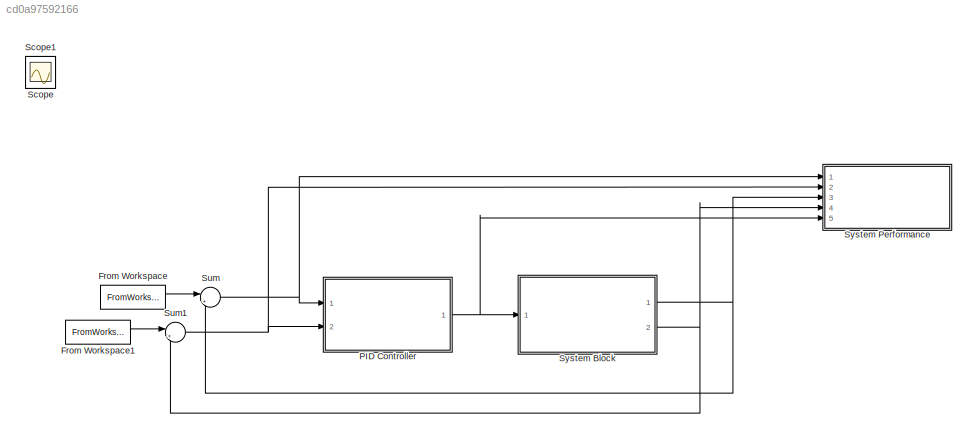
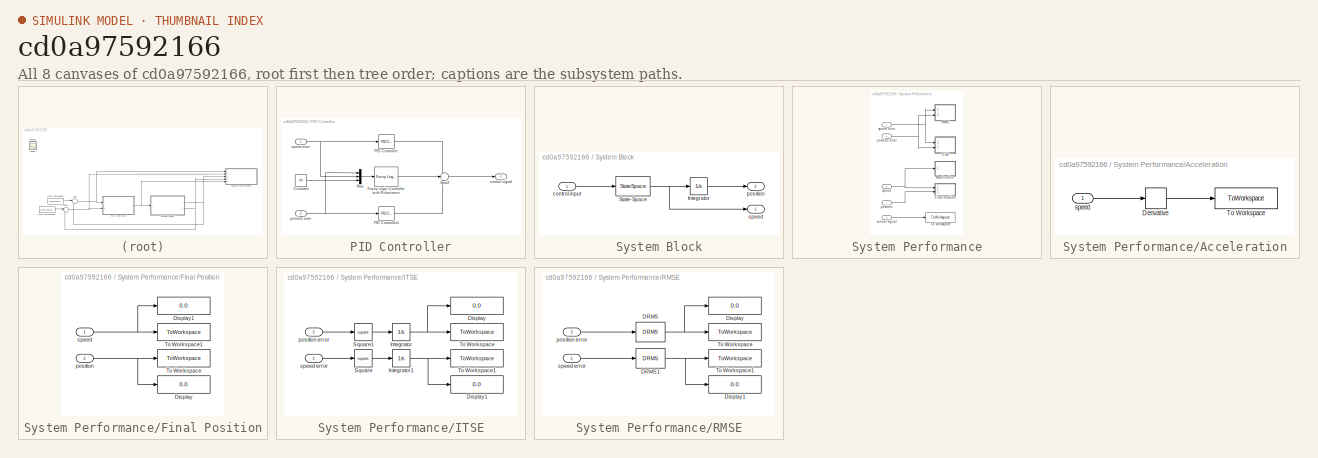
[diagram: thumbnail index - all 8 canvases of the model, root first then tree order]
MODEL slx_cd0a97592166
KIND model
CONFIG AbsTol = auto
CONFIG EnableMultiTasking = off
CONFIG FixedStep = auto
CONFIG MaxStep = auto
CONFIG MinStep = auto
CONFIG RelTol = 1e-3
CONFIG SampleTimeConstraint = Unconstrained
CONFIG Solver = VariableStepAuto
CONFIG SolverName = VariableStepAuto
CONFIG StartTime = 0.0
CONFIG StopTime = 80
BLOCK [FromWorkspace] From Workspace
  VariableName = spd_ref
BLOCK [FromWorkspace] From Workspace1
  VariableName = dis_ref
BLOCK [SubSystem] PID Controller
  Ports = [2, 1]
  RequestExecContextInheritance = off
BLOCK [Constant] PID Controller/Constant
  Value = 44
BLOCK [Reference] PID Controller/Fuzzy Logic Controller with Ruleviewer  REF=fuzblock/Fuzzy Logic   (lib defined in mdl_858b3b3e7478)
Controller 
with Ruleviewer
  Ports = [1, 1]
  SourceBlock = fuzblock/Fuzzy Logic \nController \nwith Ruleviewer
  SourceProductBaseCode = FL
  SourceType = Fuzzy Inference System
BLOCK [Mux] PID Controller/Mux
  DisplayOption = bar
  Inputs = 3
  Ports = [3, 1]
BLOCK [Reference] PID Controller/PID Controller  REF=simulink/Continuous/PID Controller
  Ports = [1, 1]
  SourceBlock = simulink/Continuous/PID Controller
  SourceProductBaseCode = SL
  SourceType = PID 1dof
BLOCK [Reference] PID Controller/PID Controller1  REF=simulink/Continuous/PID Controller
  Ports = [1, 1]
  SourceBlock = simulink/Continuous/PID Controller
  SourceProductBaseCode = SL
  SourceType = PID 1dof
BLOCK [Sum] PID Controller/Sum2
  Inputs = +++
  Ports = [3, 1]
BLOCK [Outport] PID Controller/control signal
BLOCK [Inport] PID Controller/position error
  Port = 2
BLOCK [Inport] PID Controller/speed error
BLOCK [Scope] Scope
  Floating = off
  IOType = viewer
  NumInputPorts = 1
  Ports = []
  ScopeSpecificationString = Simulink.scopes.TimeScopeBlockCfg('CurrentConfiguration', extmgr.ConfigurationSet(extmgr.Configuration('Core','General UI',true),extmgr.Configuration('Core','Source UI',true),extmgr.Configuration('Sources','WiredSimulink',true),extmgr.Configuration('Visuals','Time Domain',true,'SerializedDisplays',{struct('MinYLimReal','-0.00459','MaxYLimReal','0.00455','YLabelReal','','MinYLimMag','0.00000','MaxY...<+3434ch>
BLOCK [Scope] Scope1
  Floating = off
  IOType = viewer
  NumInputPorts = 1
  Ports = []
  ScopeSpecificationString = Simulink.scopes.TimeScopeBlockCfg('CurrentConfiguration', extmgr.ConfigurationSet(extmgr.Configuration('Core','General UI',true),extmgr.Configuration('Core','Source UI',true),extmgr.Configuration('Sources','WiredSimulink',true,'DataLoggingVariableName','ScopeData1'),extmgr.Configuration('Visuals','Time Domain',true,'SerializedDisplays',{struct('MinYLimReal','-84.51636','MaxYLimReal','116.1426','YL...<+2810ch>
BLOCK [Sum] Sum
  Inputs = |+-
  Ports = [2, 1]
BLOCK [Sum] Sum1
  Inputs = |+-
  Ports = [2, 1]
BLOCK [SubSystem] System Block
  Ports = [1, 2]
  RequestExecContextInheritance = off
BLOCK [Integrator] System Block/Integrator
  Ports = [1, 1]
BLOCK [StateSpace] System Block/State-Space
  A = A
  B = B
  C = C
  D = D
  InitialCondition = 0
  Ports = [1, 1]
BLOCK [Inport] System Block/control input
BLOCK [Outport] System Block/position
  Port = 2
BLOCK [Outport] System Block/speed
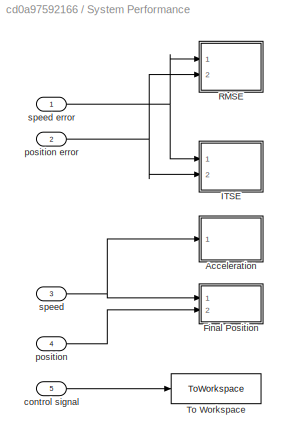
BLOCK [SubSystem] System Performance
  Ports = [5]
  RequestExecContextInheritance = off
BLOCK [SubSystem] System Performance/Acceleration
  Ports = [1]
  RequestExecContextInheritance = off
BLOCK [Derivative] System Performance/Acceleration/Derivative
BLOCK [ToWorkspace] System Performance/Acceleration/To Workspace
  FixptAsFi = on
  MaxDataPoints = inf
  Ports = [1]
  SampleTime = Ts
  SaveFormat = Timeseries
  VariableName = acceleration
BLOCK [Inport] System Performance/Acceleration/speed
BLOCK [SubSystem] System Performance/Final Position
  Ports = [2]
  RequestExecContextInheritance = off
BLOCK [Display] System Performance/Final Position/Display
  Decimation = 1
  Ports = [1]
BLOCK [Display] System Performance/Final Position/Display1
  Decimation = 1
  Ports = [1]
BLOCK [ToWorkspace] System Performance/Final Position/To Workspace
  FixptAsFi = on
  MaxDataPoints = inf
  Ports = [1]
  SampleTime = Ts
  SaveFormat = Timeseries
  VariableName = position
BLOCK [ToWorkspace] System Performance/Final Position/To Workspace1
  FixptAsFi = on
  MaxDataPoints = inf
  Ports = [1]
  SampleTime = Ts
  SaveFormat = Timeseries
  VariableName = speed
BLOCK [Inport] System Performance/Final Position/position
  Port = 2
BLOCK [Inport] System Performance/Final Position/speed
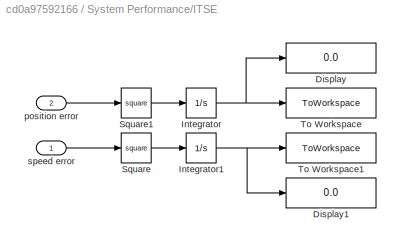
BLOCK [SubSystem] System Performance/ITSE
  Ports = [2]
  RequestExecContextInheritance = off
BLOCK [Display] System Performance/ITSE/Display
  Decimation = 1
  Ports = [1]
BLOCK [Display] System Performance/ITSE/Display1
  Decimation = 1
  Ports = [1]
BLOCK [Integrator] System Performance/ITSE/Integrator
  Ports = [1, 1]
BLOCK [Integrator] System Performance/ITSE/Integrator1
  Ports = [1, 1]
BLOCK [Math] System Performance/ITSE/Square
  Operator = square
  Ports = [1, 1]
BLOCK [Math] System Performance/ITSE/Square1
  Operator = square
  Ports = [1, 1]
BLOCK [ToWorkspace] System Performance/ITSE/To Workspace
  FixptAsFi = on
  MaxDataPoints = inf
  Ports = [1]
  SampleTime = Ts
  SaveFormat = Timeseries
  VariableName = pos_itse
BLOCK [ToWorkspace] System Performance/ITSE/To Workspace1
  FixptAsFi = on
  MaxDataPoints = inf
  Ports = [1]
  SampleTime = Ts
  SaveFormat = Timeseries
  VariableName = spd_itse
BLOCK [Inport] System Performance/ITSE/position error
  Port = 2
BLOCK [Inport] System Performance/ITSE/speed error
BLOCK [SubSystem] System Performance/RMSE
  Ports = [2]
  RequestExecContextInheritance = off
BLOCK [Reference] System Performance/RMSE/DRMS  REF=sdolib/RMS Blocks/DRMS
  Ports = [1, 1]
  SourceBlock = sdolib/RMS Blocks/DRMS
  SourceProductBaseCode = SO
  SourceType = Discrete RMS Value Block
BLOCK [Reference] System Performance/RMSE/DRMS1  REF=sdolib/RMS Blocks/DRMS
  Ports = [1, 1]
  SourceBlock = sdolib/RMS Blocks/DRMS
  SourceProductBaseCode = SO
  SourceType = Discrete RMS Value Block
BLOCK [Display] System Performance/RMSE/Display
  Decimation = 1
  Ports = [1]
BLOCK [Display] System Performance/RMSE/Display1
  Decimation = 1
  Ports = [1]
BLOCK [ToWorkspace] System Performance/RMSE/To Workspace
  FixptAsFi = on
  MaxDataPoints = inf
  Ports = [1]
  SampleTime = Ts
  SaveFormat = Timeseries
  VariableName = pos_rmse
BLOCK [ToWorkspace] System Performance/RMSE/To Workspace1
  FixptAsFi = on
  MaxDataPoints = inf
  Ports = [1]
  SampleTime = Ts
  SaveFormat = Timeseries
  VariableName = spd_rmse
BLOCK [Inport] System Performance/RMSE/position error
  Port = 2
BLOCK [Inport] System Performance/RMSE/speed error
BLOCK [ToWorkspace] System Performance/To Workspace
  FixptAsFi = on
  MaxDataPoints = inf
  Ports = [1]
  SampleTime = Ts
  SaveFormat = Timeseries
  VariableName = controlinput
BLOCK [Inport] System Performance/control signal
  Port = 5
BLOCK [Inport] System Performance/position
  Port = 4
BLOCK [Inport] System Performance/position error
  Port = 2
BLOCK [Inport] System Performance/speed
  Port = 3
BLOCK [Inport] System Performance/speed error
LINE From Workspace1:1 -> Sum1:1
LINE From Workspace:1 -> Sum:1
LINE PID Controller/Constant:1 -> PID Controller/Mux:3
LINE PID Controller/Fuzzy Logic Controller with Ruleviewer:1 -> PID Controller/Sum2:2
LINE PID Controller/Mux:1 -> PID Controller/Fuzzy Logic Controller with Ruleviewer:1
LINE PID Controller/PID Controller1:1 -> PID Controller/Sum2:3
LINE PID Controller/PID Controller:1 -> PID Controller/Sum2:1
LINE PID Controller/Sum2:1 -> PID Controller/control signal:1
NET PID Controller/position error:1 -> PID Controller/Mux:1, PID Controller/PID Controller1:1
NET PID Controller/speed error:1 -> PID Controller/Mux:2, PID Controller/PID Controller:1
NET PID Controller:1 -> System Block:1, System Performance:5
NET Sum1:1 -> PID Controller:2, System Performance:2
NET Sum:1 -> PID Controller:1, System Performance:1
LINE System Block/Integrator:1 -> System Block/position:1
NET System Block/State-Space:1 -> System Block/Integrator:1, System Block/speed:1
LINE System Block/control input:1 -> System Block/State-Space:1
NET System Block:1 -> Sum:2, System Performance:3
NET System Block:2 -> Sum1:2, System Performance:4
LINE System Performance/Acceleration/Derivative:1 -> System Performance/Acceleration/To Workspace:1
LINE System Performance/Acceleration/speed:1 -> System Performance/Acceleration/Derivative:1
NET System Performance/Final Position/position:1 -> System Performance/Final Position/Display:1, System Performance/Final Position/To Workspace:1
NET System Performance/Final Position/speed:1 -> System Performance/Final Position/Display1:1, System Performance/Final Position/To Workspace1:1
NET System Performance/ITSE/Integrator1:1 -> System Performance/ITSE/Display1:1, System Performance/ITSE/To Workspace1:1
NET System Performance/ITSE/Integrator:1 -> System Performance/ITSE/Display:1, System Performance/ITSE/To Workspace:1
LINE System Performance/ITSE/Square1:1 -> System Performance/ITSE/Integrator:1
LINE System Performance/ITSE/Square:1 -> System Performance/ITSE/Integrator1:1
LINE System Performance/ITSE/position error:1 -> System Performance/ITSE/Square1:1
LINE System Performance/ITSE/speed error:1 -> System Performance/ITSE/Square:1
NET System Performance/RMSE/DRMS1:1 -> System Performance/RMSE/Display1:1, System Performance/RMSE/To Workspace1:1
NET System Performance/RMSE/DRMS:1 -> System Performance/RMSE/Display:1, System Performance/RMSE/To Workspace:1
LINE System Performance/RMSE/position error:1 -> System Performance/RMSE/DRMS:1
LINE System Performance/RMSE/speed error:1 -> System Performance/RMSE/DRMS1:1
LINE System Performance/control signal:1 -> System Performance/To Workspace:1
NET System Performance/position error:1 -> System Performance/ITSE:2, System Performance/RMSE:2
LINE System Performance/position:1 -> System Performance/Final Position:2
NET System Performance/speed error:1 -> System Performance/ITSE:1, System Performance/RMSE:1
NET System Performance/speed:1 -> System Performance/Acceleration:1, System Performance/Final Position:1
note: NET lines group one-source signal fan-out (src -> all destinations, sorted); 1:1 wires keep LINE
